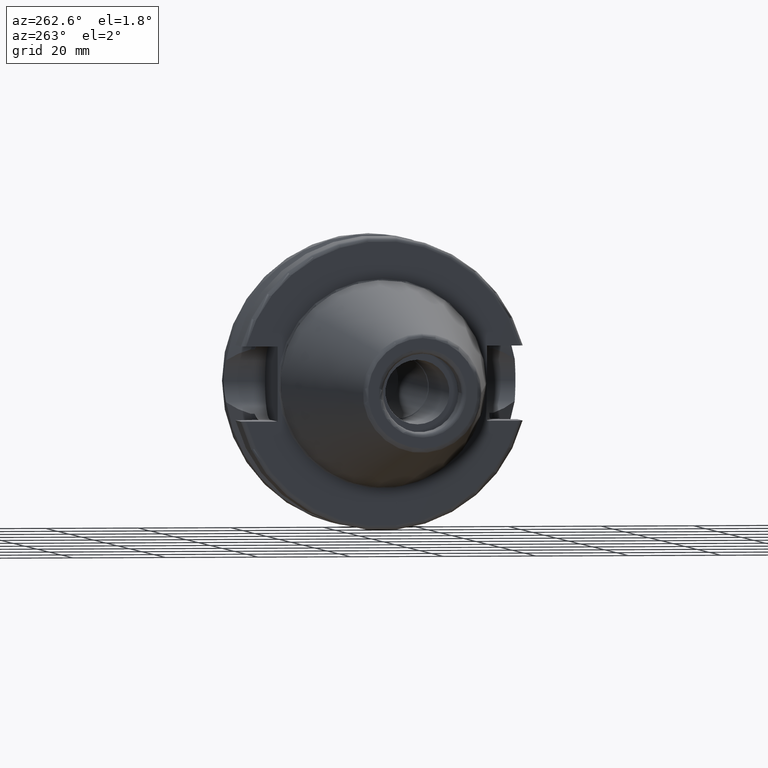
[diagram: clean part render]
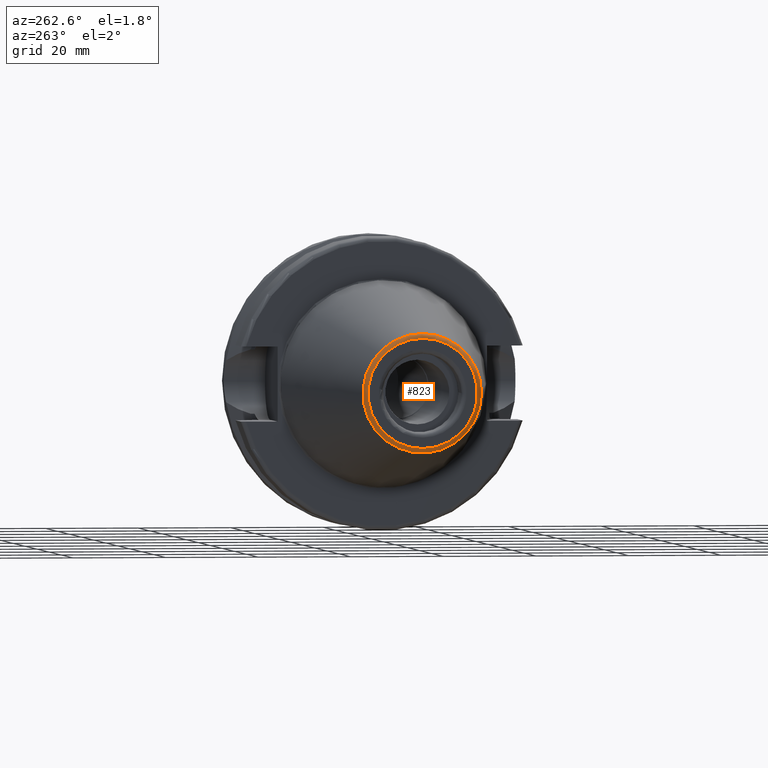
[diagram: same view with one face highlighted and labeled with its STEP entity id]
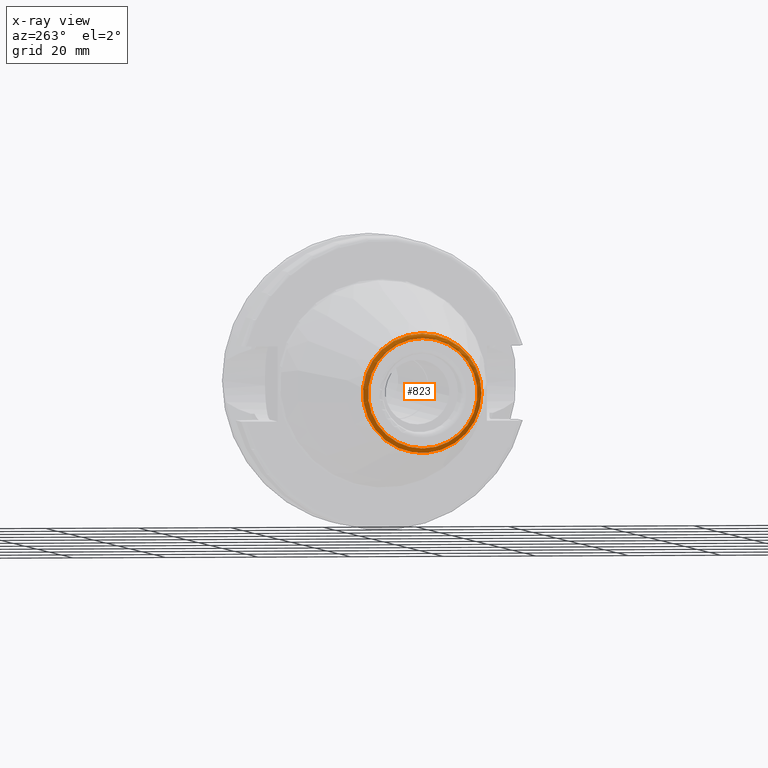
[diagram: x-ray of the same camera — body ghosted, the highlighted face saturated]
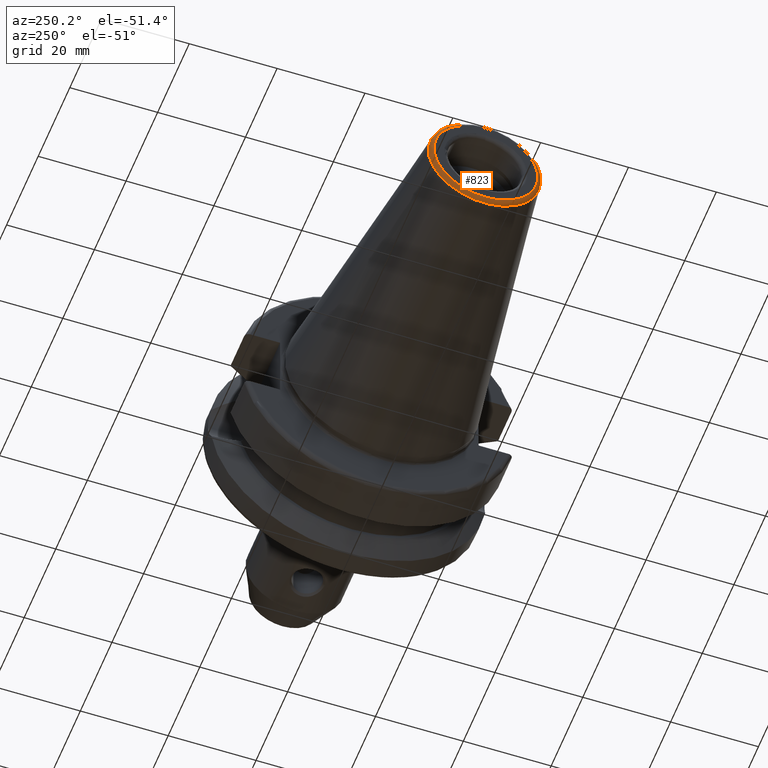
[diagram: same view with one face highlighted and labeled with its STEP entity id]
A machine part, auxiliary view. The second image highlights one B-rep face of the part: STEP entity #823.
The next image is the same camera in x-ray: the body ghosted, the highlighted face saturated — about 0% of this face is hidden behind the body in this view.
A second angle (auxiliary view) of the same face is appended — the face is thin or edge-on in the first view.
In plain terms, the highlighted toroidal blend (fillet) surface has major radius 11.8228 mm and minor (blend) radius 1 mm.
Its self-contained STEP definition (entity closure, byte-faithful):
#47=TOROIDAL_SURFACE('',#924,11.8227555970304,0.999999999999996);
#89=CIRCLE('',#925,12.8122885780937);
#90=CIRCLE('',#926,12.8122885780937);
#91=CIRCLE('',#927,0.999999999999996);
#92=CIRCLE('',#928,11.8227555970304);
#158=FACE_OUTER_BOUND('',#211,.T.);
#211=EDGE_LOOP('',(#706,#707,#708,#709,#710));
#409=VERTEX_POINT('',#1689);
#410=VERTEX_POINT('',#1690);
#411=VERTEX_POINT('',#1693);
#516=EDGE_CURVE('',#409,#410,#89,.T.);
#517=EDGE_CURVE('',#410,#409,#90,.T.);
#518=EDGE_CURVE('',#410,#411,#91,.T.);
#519=EDGE_CURVE('',#411,#411,#92,.T.);
#706=ORIENTED_EDGE('',*,*,#516,.F.);
#707=ORIENTED_EDGE('',*,*,#517,.F.);
#708=ORIENTED_EDGE('',*,*,#518,.T.);
#709=ORIENTED_EDGE('',*,*,#519,.T.);
#710=ORIENTED_EDGE('',*,*,#518,.F.);
#823=ADVANCED_FACE('',(#158),#47,.T.);
#924=AXIS2_PLACEMENT_3D('',#1688,#1127,#1128);
#925=AXIS2_PLACEMENT_3D('',#1691,#1129,#1130);
#926=AXIS2_PLACEMENT_3D('',#1692,#1131,#1132);
#927=AXIS2_PLACEMENT_3D('',#1694,#1133,#1134);
#928=AXIS2_PLACEMENT_3D('',#1695,#1135,#1136);
#1127=DIRECTION('center_axis',(1.,0.,0.));
#1128=DIRECTION('ref_axis',(0.,0.,-1.));
#1129=DIRECTION('center_axis',(1.,0.,0.));
#1130=DIRECTION('ref_axis',(0.,0.,-1.));
#1131=DIRECTION('center_axis',(1.,0.,0.));
#1132=DIRECTION('ref_axis',(0.,0.,-1.));
#1133=DIRECTION('center_axis',(0.,-1.,-1.22464679914735E-16));
#1134=DIRECTION('ref_axis',(0.,-1.22464679914735E-16,1.));
#1135=DIRECTION('center_axis',(1.,0.,0.));
#1136=DIRECTION('ref_axis',(0.,0.,-1.));
#1688=CARTESIAN_POINT('Origin',(-64.4,0.,0.));
#1689=CARTESIAN_POINT('',(-64.5443068930717,-12.8122885780937,-1.56905281969147E-15));
#1690=CARTESIAN_POINT('',(-64.5443068930717,-1.56905281969147E-15,12.8122885780937));
#1691=CARTESIAN_POINT('Origin',(-64.5443068930717,0.,0.));
#1692=CARTESIAN_POINT('Origin',(-64.5443068930717,0.,0.));
#1693=CARTESIAN_POINT('',(-65.4,-1.44786997990048E-15,11.8227555970304));
#1694=CARTESIAN_POINT('Origin',(-64.4,-1.44786997990048E-15,11.8227555970304));
#1695=CARTESIAN_POINT('Origin',(-65.4,0.,0.));